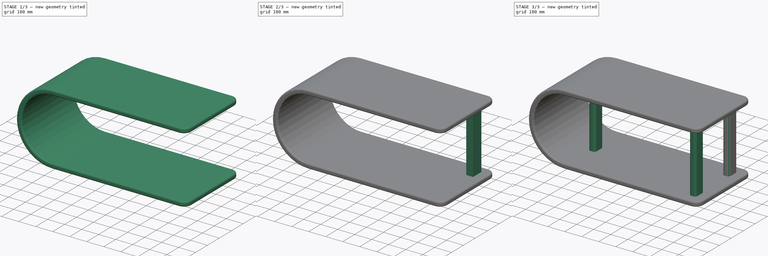
[diagram: build sequence overview — one tinted view per stage of 3, left to right]
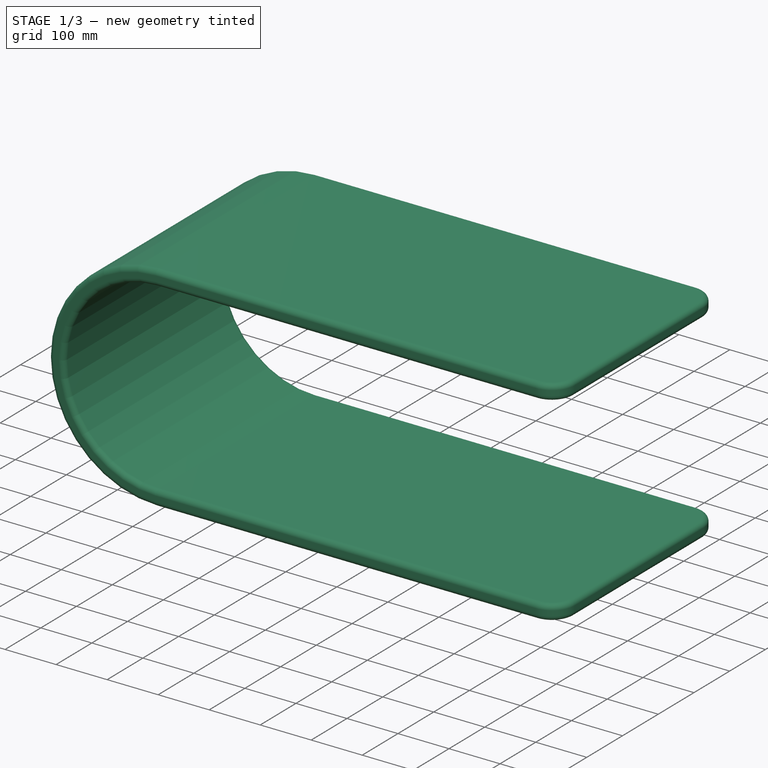
[diagram: stage 1 of 3 — iso view after this stage's code; geometry added in this stage tinted green]
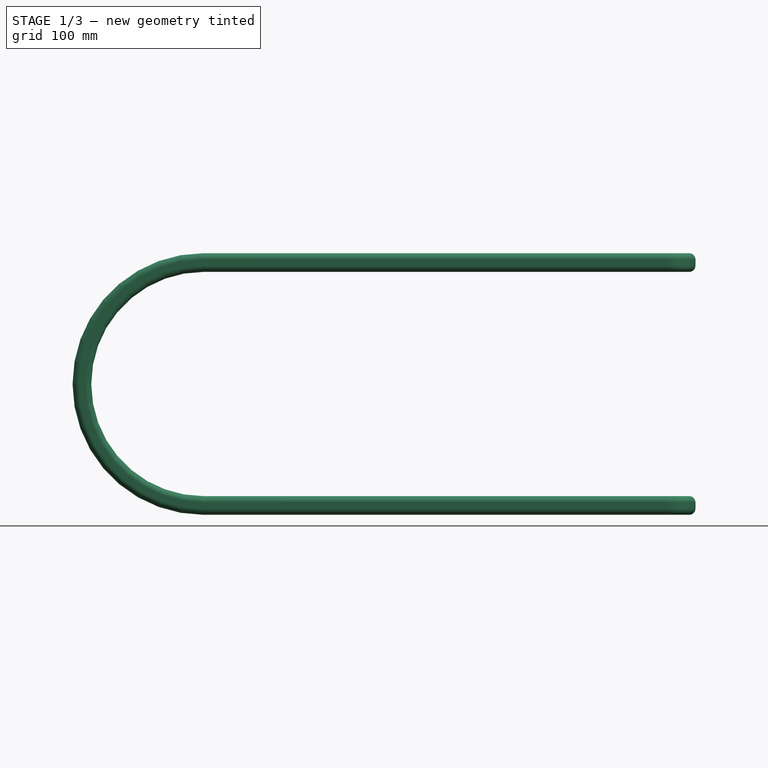
[diagram: stage 1 of 3 — front view after this stage's code; geometry added in this stage tinted green]
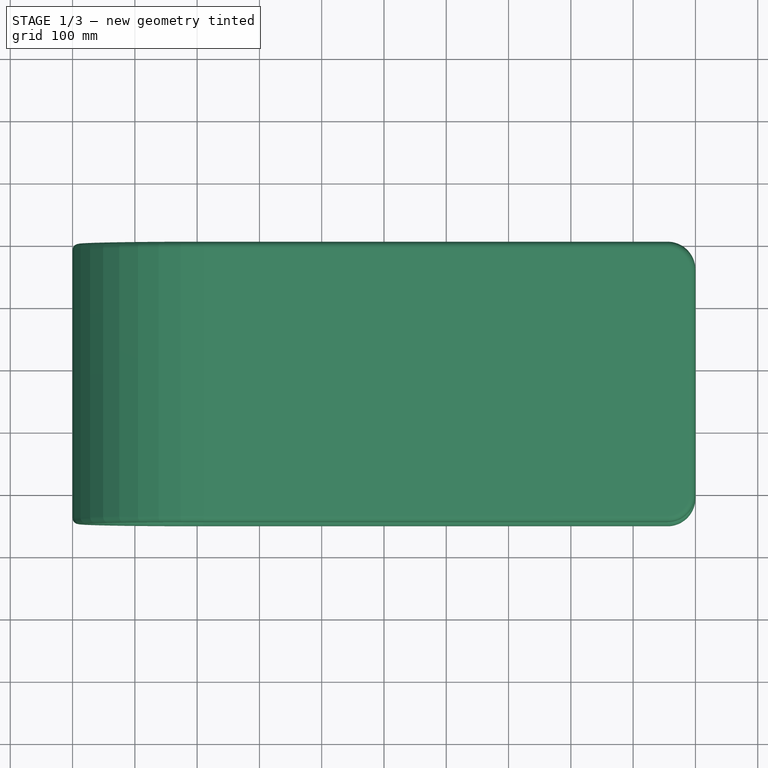
[diagram: stage 1 of 3 — top view after this stage's code; geometry added in this stage tinted green]
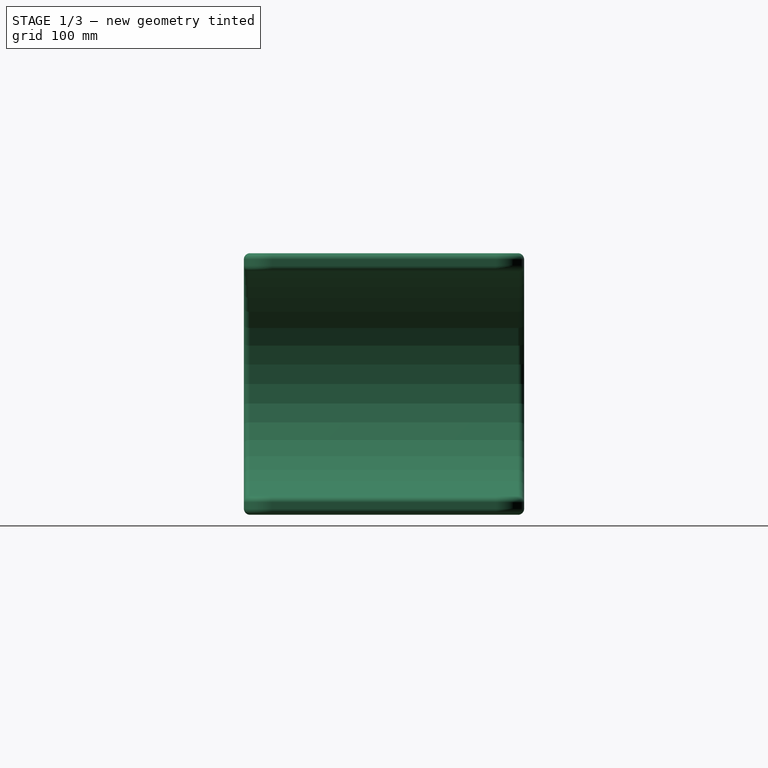
[diagram: stage 1 of 3 — right view after this stage's code; geometry added in this stage tinted green]
FCSTD DOCUMENT  (FreeCAD 0.22R35735 (Git))
Label: warped
License: All rights reserved
LicenseURL: http://en.wikipedia.org/wiki/All_rights_reserved
objects: Sketcher::SketchObject×5, PartDesign::Pad×5, PartDesign::Fillet×3, PartDesign::Plane×2, PartDesign::Body×2, TechDraw::DrawProjGroupItem×2, Spreadsheet::Sheet×1, TechDraw::DrawSVGTemplate×1, TechDraw::DrawProjGroup×1, TechDraw::DrawPage×1
note: 25 computed .brp shape members not serialized (recipe doc carries the construction recipe); baked Part::Feature solids carry a one-line shape summary decoded from their .brp

FEATURE [Spreadsheet::Sheet] Spreadsheet
  cells = A1='total_width; B1(total_width)=450; A2='total_length; B2(total_length)=1000; A3='total_height; B3(total_height)=420; A4='thickness; B4(thickness)=30; A5='leg width; B5(leg_width)=70; A6='leg radius; B6(leg_radius)=20; A7='shelf_thickness; B7(shelf_thickness)=20; A8='round_side_outer_radius; B8(round_side_outer_radius)==B3 / 2; A9='round_side_inner_radius; B9(round_side_inner_radius)==B3 / 2 - B4; A10='top_flat_part_length; B10(top_flat_part_length)==B2 - B8
FEATURE [Sketcher::SketchObject] Sketch
  FullyConstrained = true
  MapMode = 5
  Placement = pos=(0,0,0) rot=(1,0,0;1.5708rad)
  Support = -> [XZ_Plane]
  expr: Constraints[233] = Spreadsheet.thickness
  expr: Constraints[8] = Spreadsheet.total_length
  expr: Constraints[9] = Spreadsheet.total_height
  sketch-geometry (85):
    g0: LineSegment StartX=0 StartY=0 StartZ=0 EndX=1000 EndY=0 EndZ=0
    g1: LineSegment StartX=1000 StartY=0 StartZ=0 EndX=1000 EndY=420 EndZ=0
    g2: LineSegment StartX=1000 StartY=420 StartZ=0 EndX=0 EndY=420 EndZ=0
    g3: LineSegment StartX=0 StartY=420 StartZ=0 EndX=0 EndY=0 EndZ=0
    g4: Circle CenterX=210 CenterY=210 CenterZ=0 NormalX=0 NormalY=0 NormalZ=1 AngleXU=0 Radius=210
    g5: LineSegment StartX=0 StartY=210 StartZ=0 EndX=3.19037 EndY=173.534 EndZ=0
    g6: LineSegment StartX=3.19037 StartY=173.534 StartZ=0 EndX=12.6646 EndY=138.176 EndZ=0
    g7: LineSegment StartX=12.6646 StartY=138.176 StartZ=0 EndX=28.1347 EndY=105 EndZ=0
    g8: LineSegment StartX=28.1347 StartY=105 StartZ=0 EndX=49.1307 EndY=75.0146 EndZ=0
    g9: LineSegment StartX=49.1307 StartY=75.0146 StartZ=0 EndX=75.0146 EndY=49.1307 EndZ=0
    g10: LineSegment StartX=75.0146 StartY=49.1307 StartZ=0 EndX=105 EndY=28.1347 EndZ=0
    g11: LineSegment StartX=105 StartY=28.1347 StartZ=0 EndX=138.176 EndY=12.6645 EndZ=0
    g12: LineSegment StartX=138.176 StartY=12.6645 StartZ=0 EndX=173.534 EndY=3.19037 EndZ=0
    g13: LineSegment StartX=173.534 StartY=3.19037 StartZ=0 EndX=210 EndY=-4.4e-15 EndZ=0
    g14: LineSegment StartX=210 StartY=-4.4e-15 StartZ=0 EndX=246.466 EndY=3.19037 EndZ=0
    g15: LineSegment StartX=246.466 StartY=3.19037 StartZ=0 EndX=281.824 EndY=12.6646 EndZ=0
    g16: LineSegment StartX=281.824 StartY=12.6646 StartZ=0 EndX=315 EndY=28.1347 EndZ=0
    g17: LineSegment StartX=315 StartY=28.1347 StartZ=0 EndX=344.985 EndY=49.1307 EndZ=0
    g18: LineSegment StartX=344.985 StartY=49.1307 StartZ=0 EndX=370.869 EndY=75.0146 EndZ=0
    g19: LineSegment StartX=370.869 StartY=75.0146 StartZ=0 EndX=391.865 EndY=105 EndZ=0
    g20: LineSegment StartX=391.865 StartY=105 StartZ=0 EndX=407.335 EndY=138.176 EndZ=0
    g21: LineSegment StartX=407.335 StartY=138.176 StartZ=0 EndX=416.81 EndY=173.534 EndZ=0
    g22: LineSegment StartX=416.81 StartY=173.534 StartZ=0 EndX=420 EndY=210 EndZ=0
    g23: LineSegment StartX=420 StartY=210 StartZ=0 EndX=416.81 EndY=246.466 EndZ=0
    g24: LineSegment StartX=416.81 StartY=246.466 StartZ=0 EndX=407.335 EndY=281.824 EndZ=0
    g25: LineSegment StartX=407.335 StartY=281.824 StartZ=0 EndX=391.865 EndY=315 EndZ=0
    g26: LineSegment StartX=391.865 StartY=315 StartZ=0 EndX=370.869 EndY=344.985 EndZ=0
    g27: LineSegment StartX=370.869 StartY=344.985 StartZ=0 EndX=344.985 EndY=370.869 EndZ=0
    g28: LineSegment StartX=344.985 StartY=370.869 StartZ=0 EndX=315 EndY=391.865 EndZ=0
    g29: LineSegment StartX=315 StartY=391.865 StartZ=0 EndX=281.824 EndY=407.335 EndZ=0
    g30: LineSegment StartX=281.824 StartY=407.335 StartZ=0 EndX=246.466 EndY=416.81 EndZ=0
    g31: LineSegment StartX=246.466 StartY=416.81 StartZ=0 EndX=210 EndY=420 EndZ=0
    g32: LineSegment StartX=210 StartY=420 StartZ=0 EndX=173.534 EndY=416.81 EndZ=0
    g33: LineSegment StartX=173.534 StartY=416.81 StartZ=0 EndX=138.176 EndY=407.335 EndZ=0
    g34: LineSegment StartX=138.176 StartY=407.335 StartZ=0 EndX=105 EndY=391.865 EndZ=0
    g35: LineSegment StartX=105 StartY=391.865 StartZ=0 EndX=75.0146 EndY=370.869 EndZ=0
    g36: LineSegment StartX=75.0146 StartY=370.869 StartZ=0 EndX=49.1307 EndY=344.985 EndZ=0
    g37: LineSegment StartX=49.1307 StartY=344.985 StartZ=0 EndX=28.1347 EndY=315 EndZ=0
    g38: LineSegment StartX=28.1347 StartY=315 StartZ=0 EndX=12.6645 EndY=281.824 EndZ=0
    g39: LineSegment StartX=12.6645 StartY=281.824 StartZ=0 EndX=3.19037 EndY=246.466 EndZ=0
    g40: LineSegment StartX=3.19037 StartY=246.466 StartZ=0 EndX=0 EndY=210 EndZ=0
    g41: Circle CenterX=210 CenterY=210 CenterZ=0 NormalX=0 NormalY=0 NormalZ=1 AngleXU=0 Radius=210
    g42: LineSegment StartX=210 StartY=390 StartZ=0 EndX=178.743 EndY=387.265 EndZ=0
    g43: LineSegment StartX=178.743 StartY=387.265 StartZ=0 EndX=148.436 EndY=379.145 EndZ=0
    g44: LineSegment StartX=148.436 StartY=379.145 StartZ=0 EndX=120 EndY=365.885 EndZ=0
    g45: LineSegment StartX=120 StartY=365.885 StartZ=0 EndX=94.2982 EndY=347.888 EndZ=0
    g46: LineSegment StartX=94.2982 StartY=347.888 StartZ=0 EndX=72.112 EndY=325.702 EndZ=0
    g47: LineSegment StartX=72.112 StartY=325.702 StartZ=0 EndX=54.1154 EndY=300 EndZ=0
    g48: LineSegment StartX=54.1154 StartY=300 StartZ=0 EndX=40.8553 EndY=271.564 EndZ=0
    g49: LineSegment StartX=40.8553 StartY=271.564 StartZ=0 EndX=32.7346 EndY=241.257 EndZ=0
    g50: LineSegment StartX=32.7346 StartY=241.257 StartZ=0 EndX=30 EndY=210 EndZ=0
    g51: LineSegment StartX=30 StartY=210 StartZ=0 EndX=32.7346 EndY=178.743 EndZ=0
    g52: LineSegment StartX=32.7346 StartY=178.743 StartZ=0 EndX=40.8553 EndY=148.436 EndZ=0
    g53: LineSegment StartX=40.8553 StartY=148.436 StartZ=0 EndX=54.1154 EndY=120 EndZ=0
    g54: LineSegment StartX=54.1154 StartY=120 StartZ=0 EndX=72.112 EndY=94.2982 EndZ=0
    g55: LineSegment StartX=72.112 StartY=94.2982 StartZ=0 EndX=94.2982 EndY=72.112 EndZ=0
    g56: LineSegment StartX=94.2982 StartY=72.112 StartZ=0 EndX=120 EndY=54.1154 EndZ=0
    g57: LineSegment StartX=120 StartY=54.1154 StartZ=0 EndX=148.436 EndY=40.8553 EndZ=0
    g58: LineSegment StartX=148.436 StartY=40.8553 StartZ=0 EndX=178.743 EndY=32.7346 EndZ=0
    g59: LineSegment StartX=178.743 StartY=32.7346 StartZ=0 EndX=210 EndY=30 EndZ=0
    g60: LineSegment StartX=210 StartY=30 StartZ=0 EndX=241.257 EndY=32.7346 EndZ=0
    g61: LineSegment StartX=241.257 StartY=32.7346 StartZ=0 EndX=271.564 EndY=40.8553 EndZ=0
    g62: LineSegment StartX=271.564 StartY=40.8553 StartZ=0 EndX=300 EndY=54.1154 EndZ=0
    g63: LineSegment StartX=300 StartY=54.1154 StartZ=0 EndX=325.702 EndY=72.112 EndZ=0
    g64: LineSegment StartX=325.702 StartY=72.112 StartZ=0 EndX=347.888 EndY=94.2982 EndZ=0
    g65: LineSegment StartX=347.888 StartY=94.2982 StartZ=0 EndX=365.885 EndY=120 EndZ=0
    g66: LineSegment StartX=365.885 StartY=120 StartZ=0 EndX=379.145 EndY=148.436 EndZ=0
    g67: LineSegment StartX=379.145 StartY=148.436 StartZ=0 EndX=387.265 EndY=178.743 EndZ=0
    g68: LineSegment StartX=387.265 StartY=178.743 StartZ=0 EndX=390 EndY=210 EndZ=0
    g69: LineSegment StartX=390 StartY=210 StartZ=0 EndX=387.265 EndY=241.257 EndZ=0
    g70: LineSegment StartX=387.265 StartY=241.257 StartZ=0 EndX=379.145 EndY=271.564 EndZ=0
    g71: LineSegment StartX=379.145 StartY=271.564 StartZ=0 EndX=365.885 EndY=300 EndZ=0
    g72: LineSegment StartX=365.885 StartY=300 StartZ=0 EndX=347.888 EndY=325.702 EndZ=0
    g73: LineSegment StartX=347.888 StartY=325.702 StartZ=0 EndX=325.702 EndY=347.888 EndZ=0
    g74: LineSegment StartX=325.702 StartY=347.888 StartZ=0 EndX=300 EndY=365.885 EndZ=0
    g75: LineSegment StartX=300 StartY=365.885 StartZ=0 EndX=271.564 EndY=379.145 EndZ=0
    g76: LineSegment StartX=271.564 StartY=379.145 StartZ=0 EndX=241.257 EndY=387.265 EndZ=0
    g77: LineSegment StartX=241.257 StartY=387.265 StartZ=0 EndX=210 EndY=390 EndZ=0
    g78: Circle CenterX=210 CenterY=210 CenterZ=0 NormalX=0 NormalY=0 NormalZ=1 AngleXU=0 Radius=180
    g79: LineSegment StartX=210 StartY=420 StartZ=0 EndX=1000 EndY=420 EndZ=0
    g80: LineSegment StartX=210 StartY=390 StartZ=0 EndX=1000 EndY=390 EndZ=0
    g81: LineSegment StartX=210 StartY=30 StartZ=0 EndX=1000 EndY=30 EndZ=0
    g82: LineSegment StartX=210 StartY=-4.4e-15 StartZ=0 EndX=1000 EndY=0 EndZ=0
    g83: LineSegment StartX=1000 StartY=420 StartZ=0 EndX=1000 EndY=390 EndZ=0
    g84: LineSegment StartX=1000 StartY=30 StartZ=0 EndX=1000 EndY=0 EndZ=0
  constraints (181):
    c: Coincident(g0,g1)
    c: Coincident(g1,g2)
    c: Coincident(g2,g3)
    c: Coincident(g3,g0)
    c: Horizontal(g0)
    c: Horizontal(g2)
    c: Vertical(g1)
    c: Vertical(g3)
    c: Distance(g1,g3) = 1000
    c: Distance(g0,g2) = 420
    c: Coincident(g0,g-1)
    c: Tangent(g4,g2)
    c: Tangent(g4,g0)
    c: Tangent(g4,g3)
    c: Coincident(g5,g6)
    c: Coincident(g6,g7)
    c: Coincident(g7,g8)
    c: Coincident(g8,g9)
    c: Coincident(g9,g10)
    c: Coincident(g10,g11)
    c: Coincident(g11,g12)
    c: Coincident(g12,g13)
    c: Coincident(g13,g14)
    c: Coincident(g14,g15)
    c: Coincident(g15,g16)
    c: Coincident(g16,g17)
    c: Coincident(g17,g18)
    c: Coincident(g18,g19)
    c: Coincident(g19,g20)
    c: Coincident(g20,g21)
    c: Coincident(g21,g22)
    c: Coincident(g22,g23)
    c: Coincident(g23,g24)
    c: Coincident(g24,g25)
    c: Coincident(g25,g26)
    c: Coincident(g26,g27)
    c: Coincident(g27,g28)
    c: Coincident(g28,g29)
    c: Coincident(g29,g30)
    c: Coincident(g30,g31)
    c: Coincident(g31,g32)
    c: Coincident(g32,g33)
    c: Coincident(g33,g34)
    c: Coincident(g34,g35)
    c: Coincident(g35,g36)
    c: Coincident(g36,g37)
    c: Coincident(g37,g38)
    c: Coincident(g38,g39)
    c: Coincident(g39,g40)
    c: Coincident(g40,g5)
    c: Equal(g5, g6-g40) x35
    c: PointOnObject(g5,g41)
    c: PointOnObject(g6,g41)
    c: PointOnObject(g7,g41)
    c: PointOnObject(g8,g41)
    c: PointOnObject(g9,g41)
    c: PointOnObject(g10,g41)
    c: PointOnObject(g11,g41)
    c: PointOnObject(g12,g41)
    c: PointOnObject(g13,g41)
    c: PointOnObject(g14,g41)
    c: PointOnObject(g15,g41)
    c: PointOnObject(g16,g41)
    c: PointOnObject(g17,g41)
    c: PointOnObject(g18,g41)
    c: PointOnObject(g19,g41)
    c: PointOnObject(g20,g41)
    c: PointOnObject(g21,g41)
    c: PointOnObject(g22,g41)
    c: PointOnObject(g23,g41)
    c: PointOnObject(g24,g41)
    c: PointOnObject(g25,g41)
    c: PointOnObject(g26,g41)
    c: PointOnObject(g27,g41)
    c: PointOnObject(g28,g41)
    c: PointOnObject(g29,g41)
    c: PointOnObject(g30,g41)
    c: PointOnObject(g31,g41)
    c: PointOnObject(g32,g41)
    c: PointOnObject(g33,g41)
    c: PointOnObject(g34,g41)
    c: PointOnObject(g35,g41)
    c: PointOnObject(g36,g41)
    c: PointOnObject(g37,g41)
    c: PointOnObject(g38,g41)
    c: PointOnObject(g39,g41)
    c: PointOnObject(g40,g41)
    c: Coincident(g41,g4)
    c: PointOnObject(g40,g4)
    c: PointOnObject(g31,g2)
    c: Coincident(g42,g43)
    c: Coincident(g43,g44)
    c: Coincident(g44,g45)
    c: Coincident(g45,g46)
    c: Coincident(g46,g47)
    c: Coincident(g47,g48)
    c: Coincident(g48,g49)
    c: Coincident(g49,g50)
    c: Coincident(g50,g51)
    c: Coincident(g51,g52)
    c: Coincident(g52,g53)
    c: Coincident(g53,g54)
    c: Coincident(g54,g55)
    c: Coincident(g55,g56)
    c: Coincident(g56,g57)
    c: Coincident(g57,g58)
    c: Coincident(g58,g59)
    c: Coincident(g59,g60)
    c: Coincident(g60,g61)
    c: Coincident(g61,g62)
    c: Coincident(g62,g63)
    c: Coincident(g63,g64)
    c: Coincident(g64,g65)
    c: Coincident(g65,g66)
    c: Coincident(g66,g67)
    c: Coincident(g67,g68)
    c: Coincident(g68,g69)
    c: Coincident(g69,g70)
    c: Coincident(g70,g71)
    c: Coincident(g71,g72)
    c: Coincident(g72,g73)
    c: Coincident(g73,g74)
    c: Coincident(g74,g75)
    c: Coincident(g75,g76)
    c: Coincident(g76,g77)
    c: Coincident(g77,g42)
    c: Equal(g42, g43-g77) x35
    c: PointOnObject(g42,g78)
    c: PointOnObject(g43,g78)
    c: PointOnObject(g44,g78)
    c: PointOnObject(g45,g78)
    c: PointOnObject(g46,g78)
    c: PointOnObject(g47,g78)
    c: PointOnObject(g48,g78)
    c: PointOnObject(g49,g78)
    c: PointOnObject(g50,g78)
    c: PointOnObject(g51,g78)
    c: PointOnObject(g52,g78)
    c: PointOnObject(g53,g78)
    c: PointOnObject(g54,g78)
    c: PointOnObject(g55,g78)
    c: PointOnObject(g56,g78)
    c: PointOnObject(g57,g78)
    c: PointOnObject(g58,g78)
    c: PointOnObject(g59,g78)
    c: PointOnObject(g60,g78)
    c: PointOnObject(g61,g78)
    c: PointOnObject(g62,g78)
    c: PointOnObject(g63,g78)
    c: PointOnObject(g64,g78)
    c: PointOnObject(g65,g78)
    c: PointOnObject(g66,g78)
    c: PointOnObject(g67,g78)
    c: PointOnObject(g68,g78)
    c: PointOnObject(g69,g78)
    c: PointOnObject(g70,g78)
    c: PointOnObject(g71,g78)
    c: PointOnObject(g72,g78)
    c: PointOnObject(g73,g78)
    c: PointOnObject(g74,g78)
    c: PointOnObject(g75,g78)
    c: PointOnObject(g76,g78)
    c: PointOnObject(g77,g78)
    c: Coincident(g78,g4)
    c: Vertical(g31,g42)
    c: DistanceX(g5,g50) = 30
    c: Coincident(g1,g79)
    c: Coincident(g80,g42)
    c: PointOnObject(g80,g1)
    c: Tangent(g80,g78)
    c: Coincident(g81,g59)
    c: PointOnObject(g81,g1)
    c: Horizontal(g81)
    c: Coincident(g82,g13)
    c: Coincident(g82,g0)
    c: Coincident(g83,g79)
    c: Coincident(g83,g80)
    c: Coincident(g84,g81)
    c: Coincident(g84,g82)
    c: Coincident(g79,g32)
    c: Distance(g4,g42) = 180
FEATURE [PartDesign::Pad] Pad
  Direction = (0,-1,2e-16)
  Length = 450
  Length2 = 10
  Placement = pos=(0,0,0) rot=(1,0,0;1.5708rad)
  Profile = -> Sketch
  ReferenceAxis = -> Sketch [N_Axis]
  Type = 0
  expr: Length = Spreadsheet.total_width
FEATURE [PartDesign::Body] Body001  label="InnerFrame"
  Group = -> [DatumPlane,Sketch001,Pad001,DatumPlane001,Sketch002,Sketch003,Pad002,Pad003,Sketch004,Pad004,Fillet]
  Origin = -> Origin001
  Tip = -> Fillet
FEATURE [PartDesign::Fillet] Fillet001
  Base = -> Pad [Edge123,Edge124,Edge61,Edge60]
  BaseFeature = -> Pad
  Placement = pos=(0,0,0) rot=(1,0,0;1.5708rad)
  Radius = 45
  SupportTransform = false
  UseAllEdges = false
FEATURE [PartDesign::Fillet] Fillet002
  Base = -> Fillet001 [Face5,Face6]
  BaseFeature = -> Fillet001
  Placement = pos=(0,0,0) rot=(1,0,0;1.5708rad)
  Radius = 10
  SupportTransform = false
  UseAllEdges = false
FEATURE [PartDesign::Body] Body  label="MainBody"
  Group = -> [Sketch,Pad,Fillet001,Fillet002]
  Origin = -> Origin
  Tip = -> Fillet002
FEATURE [TechDraw::DrawSVGTemplate] Template
  Height = 215.9
  Orientation = 1
  Template = <path>
  Width = 279.4
FEATURE [TechDraw::DrawProjGroupItem] ProjItem  label="Front"
  CoarseView = false
  Direction = (0,-1,0)
  Focus = 100
  HardHidden = false
  IsoCount = 0
  IsoHidden = false
  IsoVisible = false
  LockPosition = true
  Perspective = false
  Rotation = 0
  RotationVector = (1,0,0)
  Scale = 0.2
  ScaleType = 2
  ScrubCount = 0
  SeamHidden = false
  SeamVisible = false
  SmoothHidden = false
  SmoothVisible = true
  Source = -> [Pad]
  Type = 0
  X = 0
  XDirection = (1,0,0)
  Y = 0
FEATURE [TechDraw::DrawProjGroupItem] ProjItem001  label="Top"
  CoarseView = false
  Direction = (0,0,1)
  Focus = 100
  HardHidden = false
  IsoCount = 0
  IsoHidden = false
  IsoVisible = false
  LockPosition = false
  Perspective = false
  Rotation = 0
  RotationVector = (1,0,0)
  Scale = 0.2
  ScaleType = 2
  ScrubCount = 0
  SeamHidden = false
  SeamVisible = false
  SmoothHidden = false
  SmoothVisible = true
  Source = -> [Pad]
  Type = 4
  X = 0
  XDirection = (1,0,0)
  Y = -102
FEATURE [TechDraw::DrawProjGroup] ProjGroup
  Anchor = -> ProjItem
  AutoDistribute = true
  LockPosition = false
  ProjectionType = 0
  Rotation = 0
  Scale = 0.2
  ScaleType = 2
  Source = -> [Pad]
  Views = -> [ProjItem,ProjItem001]
  X = 134.462
  Y = 160.33
  spacingX = 15
  spacingY = 15
FEATURE [TechDraw::DrawPage] Page
  KeepUpdated = true
  NextBalloonIndex = 1
  ProjectionType = 0
  Template = -> Template
  Views = -> [ProjGroup]
note: 1 file-system path scrubbed to <path> (originals preserved in the JSON sidecar)
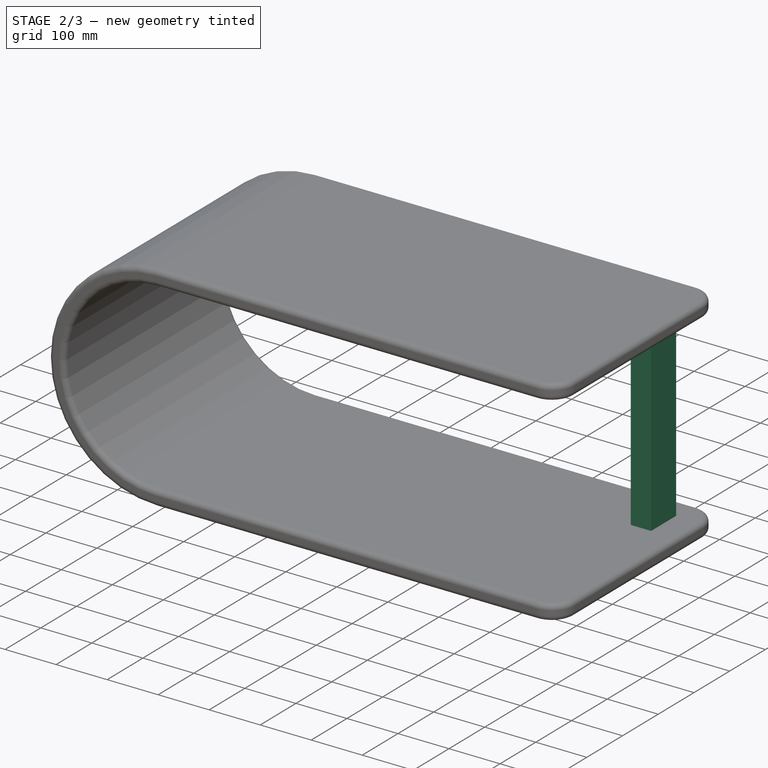
[diagram: stage 2 of 3 — iso view after this stage's code; geometry added in this stage tinted green]
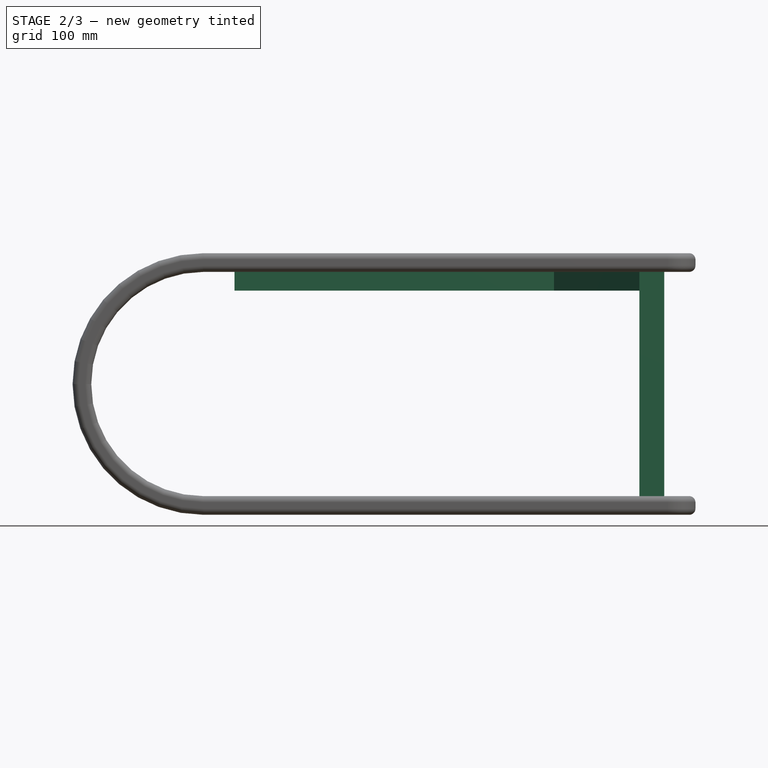
[diagram: stage 2 of 3 — front view after this stage's code; geometry added in this stage tinted green]
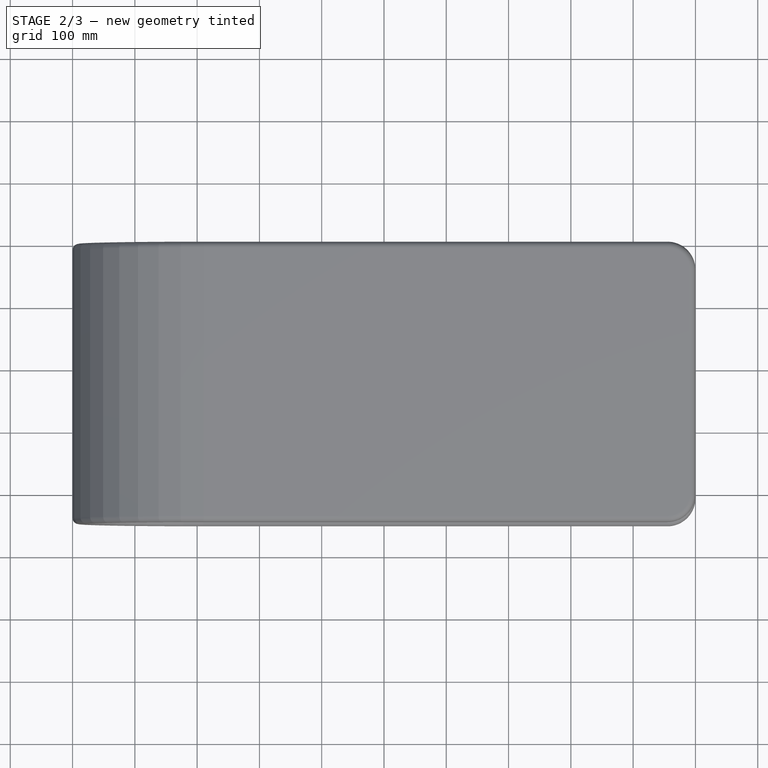
[diagram: stage 2 of 3 — top view after this stage's code; geometry added in this stage tinted green]
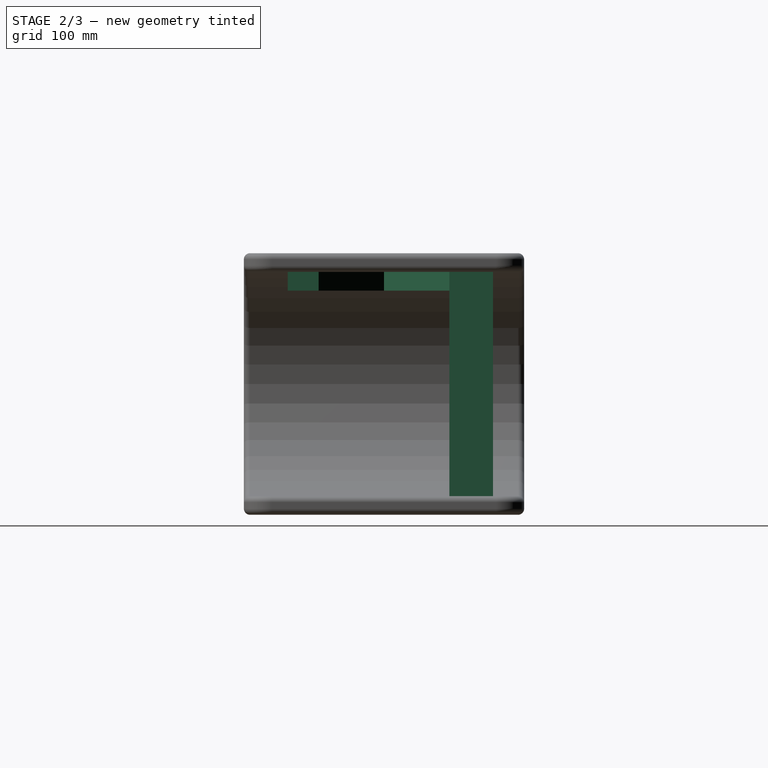
[diagram: stage 2 of 3 — right view after this stage's code; geometry added in this stage tinted green]
FEATURE [PartDesign::Plane] DatumPlane  label="BottomPlane"
  AttachmentOffset = pos=(0,0,30) rot=(0,0,1;0rad)
  Length = 1103.74
  MapMode = 5
  Placement = pos=(0,0,30) rot=(0,0,1;0rad)
  ResizeMode = 0
  Support = -> [XY_Plane001]
  Width = 553.744
  expr: .AttachmentOffset.Base.z = Spreadsheet.thickness
FEATURE [Sketcher::SketchObject] Sketch001
  FullyConstrained = true
  MapMode = 5
  Placement = pos=(0,0,30) rot=(0,0,1;0rad)
  Support = -> [DatumPlane]
  expr: Constraints[19] = 2 * Spreadsheet.leg_radius
  expr: Constraints[20] = Spreadsheet.leg_width
  expr: Constraints[8] = Spreadsheet.total_length
  expr: Constraints[9] = Spreadsheet.total_width
  sketch-geometry (8):
    g0: LineSegment StartX=0 StartY=0 StartZ=0 EndX=0 EndY=-450 EndZ=0
    g1: LineSegment StartX=0 StartY=-450 StartZ=0 EndX=1000 EndY=-450 EndZ=0
    g2: LineSegment StartX=1000 StartY=-450 StartZ=0 EndX=1000 EndY=0 EndZ=0
    g3: LineSegment StartX=1000 StartY=0 StartZ=0 EndX=0 EndY=0 EndZ=0
    g4: LineSegment StartX=910 StartY=-50 StartZ=0 EndX=910 EndY=-120 EndZ=0
    g5: LineSegment StartX=910 StartY=-120 StartZ=0 EndX=950 EndY=-120 EndZ=0
    g6: LineSegment StartX=950 StartY=-120 StartZ=0 EndX=950 EndY=-50 EndZ=0
    g7: LineSegment StartX=950 StartY=-50 StartZ=0 EndX=910 EndY=-50 EndZ=0
  constraints (23):
    c: Coincident(g0,g1)
    c: Coincident(g1,g2)
    c: Coincident(g2,g3)
    c: Coincident(g3,g0)
    c: Vertical(g0)
    c: Vertical(g2)
    c: Horizontal(g1)
    c: Horizontal(g3)
    c: Distance(g0,g2) = 1000
    c: Distance(g1,g3) = 450
    c: Coincident(g0,g-1)
    c: Coincident(g4,g5)
    c: Coincident(g5,g6)
    c: Coincident(g6,g7)
    c: Coincident(g7,g4)
    c: Vertical(g4)
    c: Vertical(g6)
    c: Horizontal(g5)
    c: Horizontal(g7)
    c: Distance(g4,g6) = 40
    c: Distance(g5,g7) = 70
    c: Distance(g6,g3) = 50
    c: Distance(g6,g2) = 50
FEATURE [PartDesign::Pad] Pad001
  Direction = (0,0,1)
  Length = 360
  Length2 = 10
  Placement = pos=(0,0,30) rot=(0,0,1;0rad)
  Profile = -> Sketch001
  ReferenceAxis = -> Sketch001 [N_Axis]
  Type = 0
  expr: Length = Spreadsheet.total_height - 2 * Spreadsheet.thickness
FEATURE [PartDesign::Plane] DatumPlane001  label="TopPlane"
  AttachmentOffset = pos=(0,0,390) rot=(0,0,1;0rad)
  Length = 1103.74
  MapMode = 5
  Placement = pos=(0,0,390) rot=(0,0,1;0rad)
  ResizeMode = 0
  Support = -> [XY_Plane001]
  Width = 553.744
  expr: .AttachmentOffset.Base.z = Spreadsheet.total_height - Spreadsheet.thickness
FEATURE [Sketcher::SketchObject] Sketch002  label="Stretcher"
  ExternalGeometry = -> [Pad001]
  FullyConstrained = true
  MapMode = 5
  Placement = pos=(0,0,390) rot=(0,0,1;0rad)
  Support = -> [DatumPlane001]
  expr: Constraints[14] = Spreadsheet.top_flat_part_length
  expr: Constraints[8] = Spreadsheet.total_length
  expr: Constraints[9] = Spreadsheet.total_width
  sketch-geometry (15):
    g0: LineSegment StartX=0 StartY=0 StartZ=0 EndX=0 EndY=-450 EndZ=0
    g1: LineSegment StartX=0 StartY=-450 StartZ=0 EndX=1000 EndY=-450 EndZ=0
    g2: LineSegment StartX=1000 StartY=-450 StartZ=0 EndX=1000 EndY=0 EndZ=0
    g3: LineSegment StartX=1000 StartY=0 StartZ=0 EndX=0 EndY=0 EndZ=0
    g4: LineSegment StartX=210 StartY=0 StartZ=0 EndX=210 EndY=-450 EndZ=0
    g5: LineSegment StartX=910 StartY=-70.5025 StartZ=0 EndX=773.003 EndY=-207.5 EndZ=0
    g6: LineSegment StartX=773.003 StartY=-207.5 StartZ=0 EndX=260 EndY=-207.5 EndZ=0
    g7: LineSegment StartX=260 StartY=-207.5 StartZ=0 EndX=260 EndY=-242.5 EndZ=0
    g8: LineSegment StartX=260 StartY=-242.5 StartZ=0 EndX=773.003 EndY=-242.5 EndZ=0
    g9: LineSegment StartX=773.003 StartY=-242.5 StartZ=0 EndX=910 EndY=-379.497 EndZ=0
    g10: LineSegment StartX=910 StartY=-379.497 StartZ=0 EndX=910 EndY=-330 EndZ=0
    g11: LineSegment StartX=910 StartY=-330 StartZ=0 EndX=805 EndY=-225 EndZ=0
    g12: LineSegment StartX=805 StartY=-225 StartZ=0 EndX=910 EndY=-120 EndZ=0
    g13: LineSegment StartX=910 StartY=-120 StartZ=0 EndX=910 EndY=-70.5025 EndZ=0
    g14: LineSegment StartX=210 StartY=-225 StartZ=0 EndX=1000 EndY=-225 EndZ=0
  constraints (40):
    c: Coincident(g0,g1)
    c: Coincident(g1,g2)
    c: Coincident(g2,g3)
    c: Coincident(g3,g0)
    c: Vertical(g0)
    c: Vertical(g2)
    c: Horizontal(g1)
    c: Horizontal(g3)
    c: Distance(g0,g2) = 1000
    c: Distance(g1,g3) = 450
    c: Coincident(g0,g-1)
    c: PointOnObject(g4,g3)
    c: PointOnObject(g4,g1)
    c: Vertical(g4)
    c: DistanceX(g4,g1) = 790
    c: PointOnObject(g5,g-3)
    c: Coincident(g5,g6)
    c: Horizontal(g6)
    c: Coincident(g6,g7)
    c: Coincident(g7,g8)
    c: Coincident(g8,g9)
    c: Coincident(g9,g10)
    c: Coincident(g10,g11)
    c: Coincident(g11,g12)
    c: Coincident(g12,g-6)
    c: Coincident(g12,g13)
    c: Coincident(g13,g5)
    c: PointOnObject(g14,g4)
    c: PointOnObject(g14,g2)
    c: Symmetric(g4,g4,g14)
    c: Symmetric(g6,g7,g14)
    c: Symmetric(g5,g8,g14)
    c: PointOnObject(g11,g14)
    c: Symmetric(g12,g10,g14)
    c: Symmetric(g9,g5,g14)
    c: Parallel(g12,g5)
    c: Angle(g14,g12) = 0.785398
    c: Distance(g7,g6) = 35
    c: Distance(g11,g5) = 35
    c: Distance(g7,g4) = 50
FEATURE [Sketcher::SketchObject] Sketch003  label="ThirdLeg"
  ExternalGeometry = -> [Sketch002,Pad001]
  FullyConstrained = true
  MapMode = 5
  Placement = pos=(0,0,390) rot=(0,0,1;0rad)
  Support = -> [DatumPlane001]
  sketch-geometry (5):
    g0: LineSegment StartX=260 StartY=-190 StartZ=0 EndX=220 EndY=-190 EndZ=0
    g1: LineSegment StartX=220 StartY=-190 StartZ=0 EndX=220 EndY=-260 EndZ=0
    g2: LineSegment StartX=220 StartY=-260 StartZ=0 EndX=260 EndY=-260 EndZ=0
    g3: LineSegment StartX=260 StartY=-260 StartZ=0 EndX=260 EndY=-190 EndZ=0
    g4: GeomPoint X=260 Y=-225 Z=0
  constraints (12):
    c: Coincident(g0,g1)
    c: Coincident(g1,g2)
    c: Coincident(g2,g3)
    c: Coincident(g3,g0)
    c: Horizontal(g0)
    c: Horizontal(g2)
    c: Vertical(g1)
    c: Vertical(g3)
    c: Equal(g0,g-5)
    c: Equal(g1,g-4)
    c: Symmetric(g-3,g-3,g4)
    c: Symmetric(g0,g2,g4)
FEATURE [PartDesign::Pad] Pad002
  BaseFeature = -> Pad001
  Direction = (0,0,1)
  Length = 30
  Length2 = 10
  Placement = pos=(0,0,30) rot=(0,0,1;0rad)
  Profile = -> Sketch002
  ReferenceAxis = -> Sketch002 [N_Axis]
  Reversed = true
  Type = 0
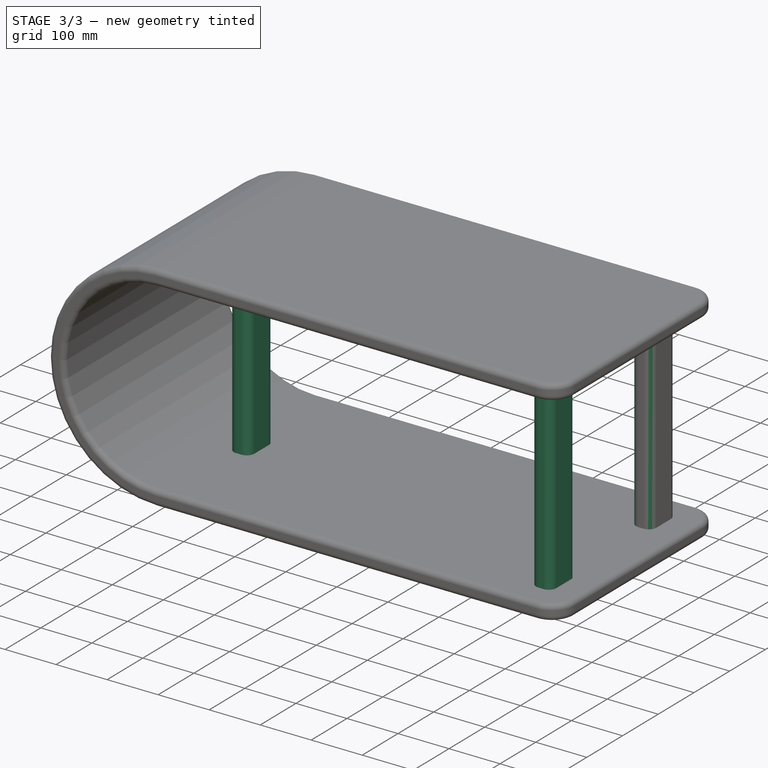
[diagram: stage 3 of 3 — iso view after this stage's code; geometry added in this stage tinted green]
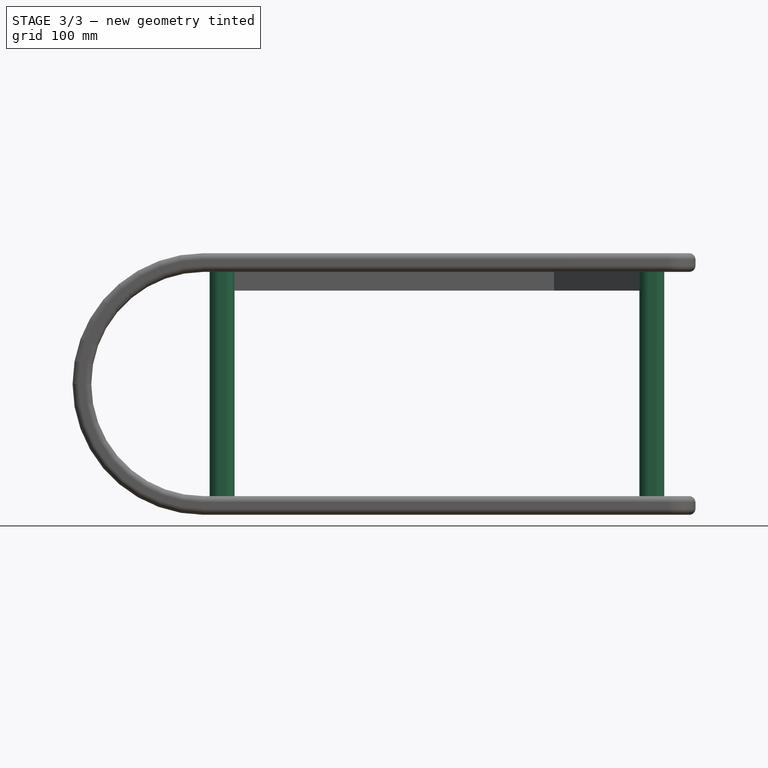
[diagram: stage 3 of 3 — front view after this stage's code; geometry added in this stage tinted green]
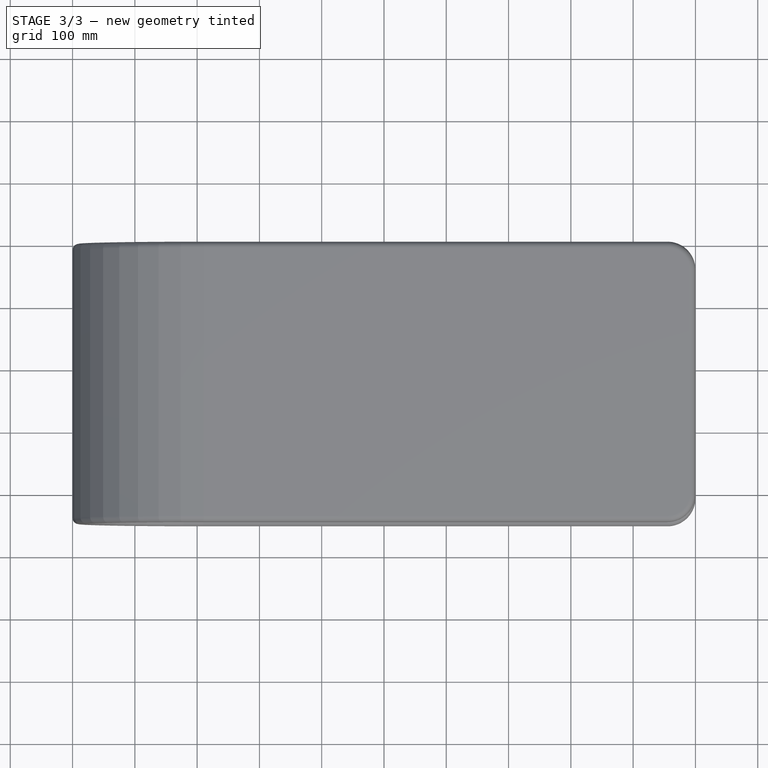
[diagram: stage 3 of 3 — top view after this stage's code; geometry added in this stage tinted green]
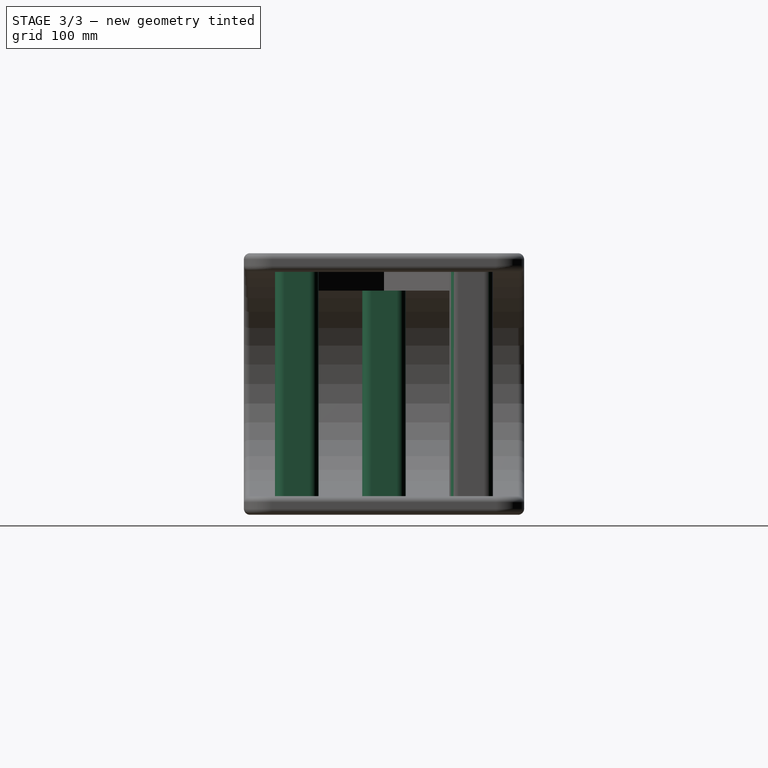
[diagram: stage 3 of 3 — right view after this stage's code; geometry added in this stage tinted green]
FEATURE [PartDesign::Pad] Pad003
  BaseFeature = -> Pad002
  Direction = (0,0,1)
  Length = 360
  Length2 = 10
  Placement = pos=(0,0,30) rot=(0,0,1;0rad)
  Profile = -> Sketch003
  ReferenceAxis = -> Sketch003 [N_Axis]
  Reversed = true
  Type = 0
  expr: Length = Spreadsheet.total_height - 2 * Spreadsheet.thickness
FEATURE [Sketcher::SketchObject] Sketch004
  ExternalGeometry = -> [Pad003]
  FullyConstrained = true
  MapMode = 5
  Placement = pos=(0,0,30) rot=(0,0,1;0rad)
  Support = -> [DatumPlane]
  sketch-geometry (4):
    g0: LineSegment StartX=910 StartY=-330 StartZ=0 EndX=910 EndY=-400 EndZ=0
    g1: LineSegment StartX=910 StartY=-400 StartZ=0 EndX=950 EndY=-400 EndZ=0
    g2: LineSegment StartX=950 StartY=-400 StartZ=0 EndX=950 EndY=-330 EndZ=0
    g3: LineSegment StartX=950 StartY=-330 StartZ=0 EndX=910 EndY=-330 EndZ=0
  constraints (11):
    c: Coincident(g0,g1)
    c: Coincident(g1,g2)
    c: Coincident(g2,g3)
    c: Coincident(g3,g0)
    c: Vertical(g0)
    c: Vertical(g2)
    c: Horizontal(g1)
    c: Horizontal(g3)
    c: Coincident(g0,g-3)
    c: Equal(g2,g-7)
    c: Equal(g3,g-6)
FEATURE [PartDesign::Pad] Pad004
  BaseFeature = -> Pad003
  Direction = (0,0,1)
  Length = 360
  Length2 = 10
  Placement = pos=(0,0,30) rot=(0,0,1;0rad)
  Profile = -> Sketch004
  ReferenceAxis = -> Sketch004 [N_Axis]
  Type = 0
  expr: Length = Spreadsheet.total_height - 2 * Spreadsheet.thickness
FEATURE [PartDesign::Fillet] Fillet
  Base = -> Pad004 [Edge59,Edge41,Edge58,Edge60,Edge64,Edge48,Edge11,Edge1,Edge2,Edge46,Edge39,Edge12]
  BaseFeature = -> Pad004
  Placement = pos=(0,0,30) rot=(0,0,1;0rad)
  Radius = 15
  SupportTransform = false
  UseAllEdges = false
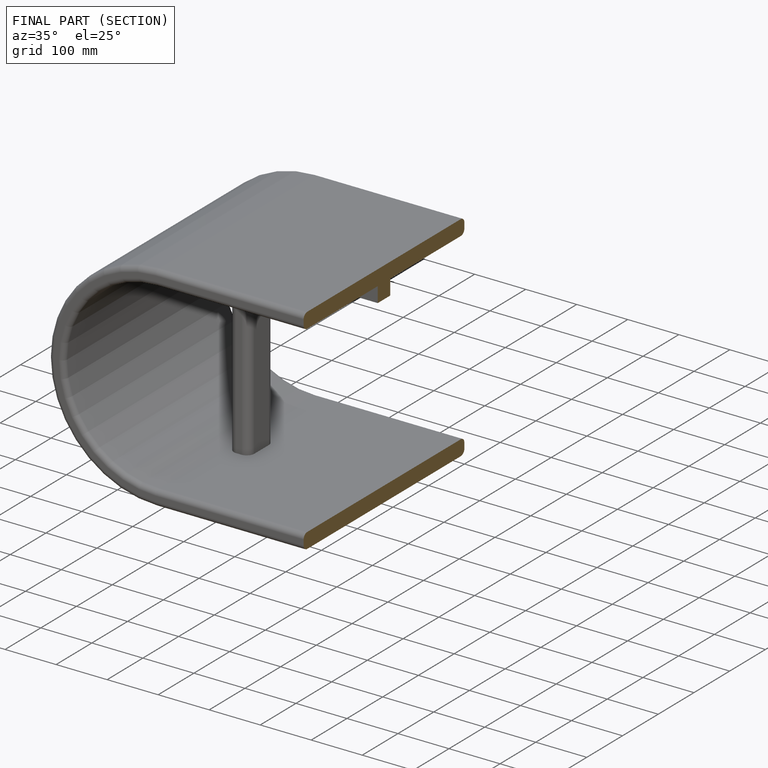
[diagram: finished part — half-section view (interior)]
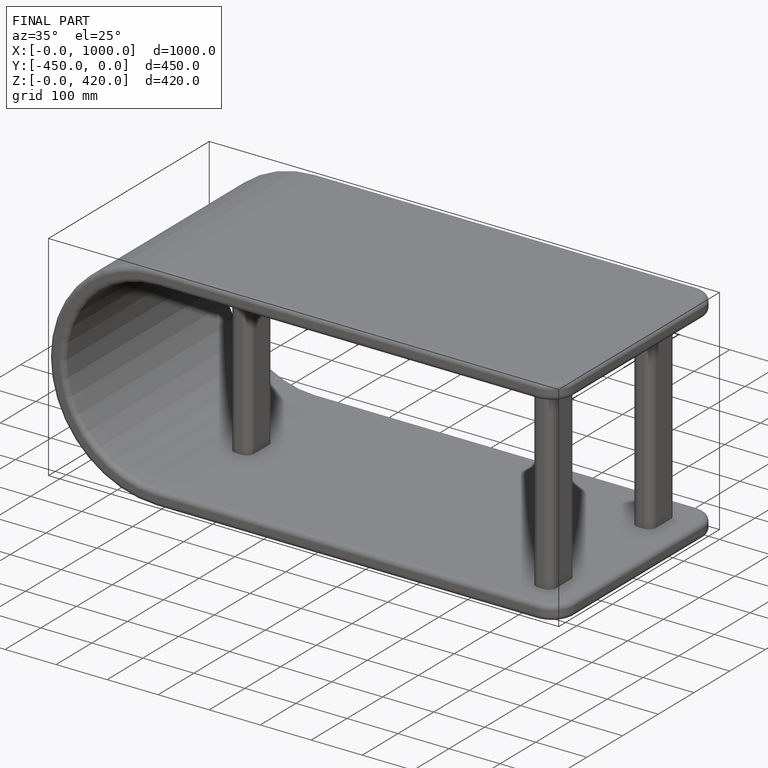
[diagram: finished part — iso view with bounding-box wireframe]
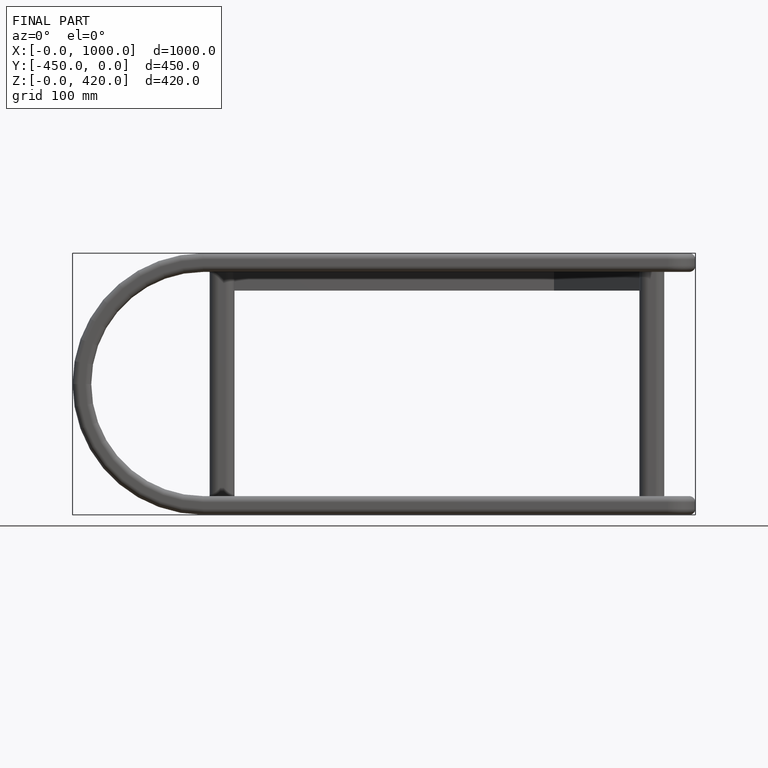
[diagram: finished part — front view with bounding-box wireframe]
